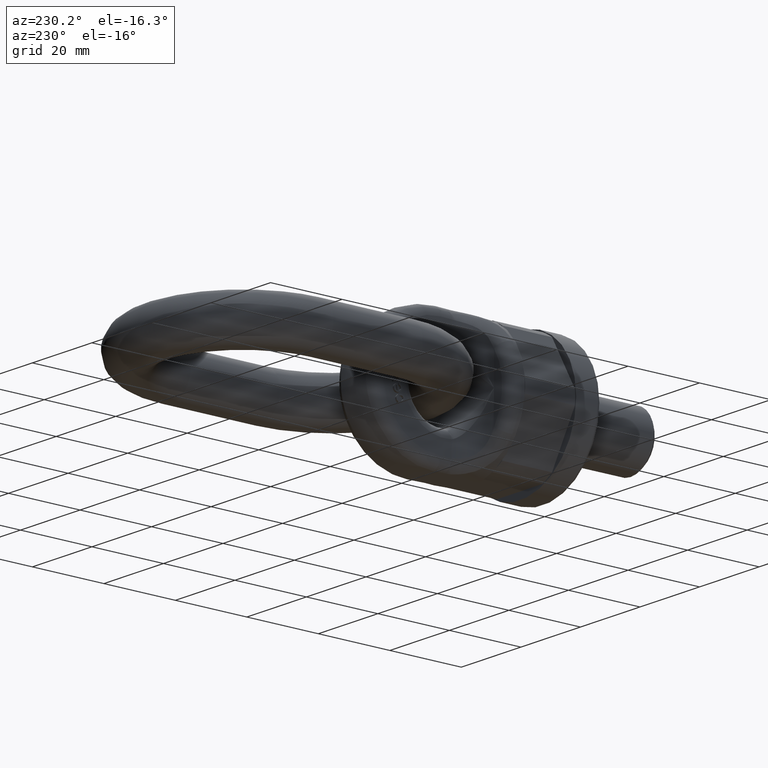
[diagram: clean part render]
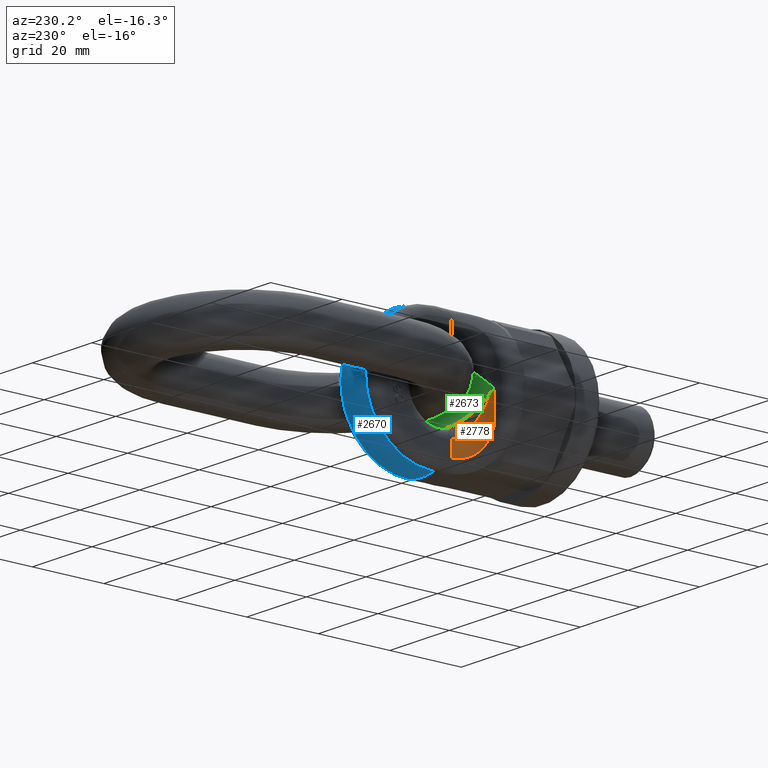
[diagram: same view with three faces highlighted in distinct colors, each labeled with its STEP entity id]
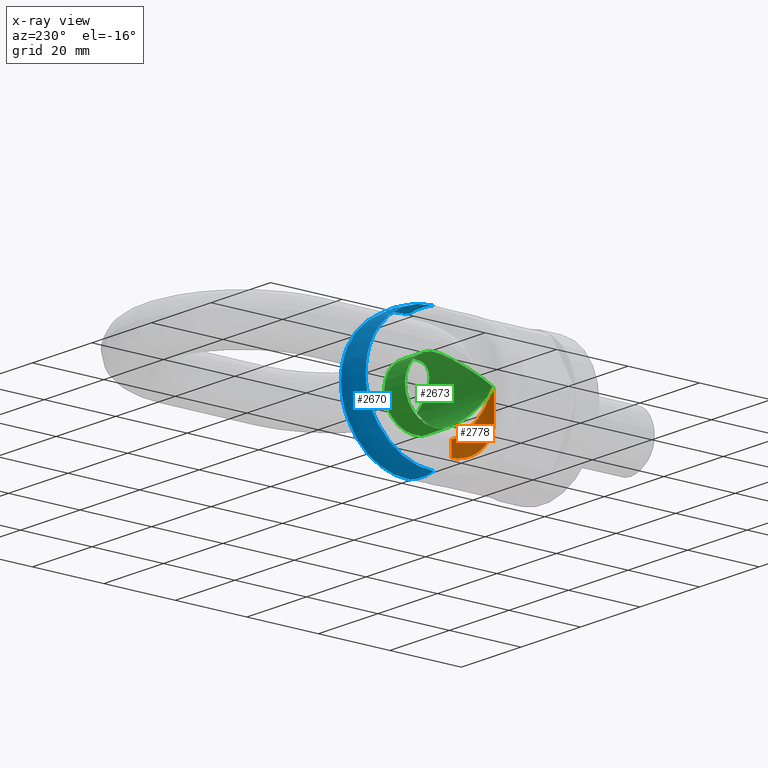
[diagram: x-ray of the same camera — body ghosted, the three highlighted faces saturated]
A machine part, auxiliary view with three faces highlighted in distinct colors.
The next image is the same camera in x-ray (body ghosted, the three faces saturated) — at least one of them is partly hidden behind the body in this view.
Their STEP definitions:

[orange] entity #2778 — the highlighted cylindrical surface (edge-blend (fillet) strip) has radius 6.5 mm, axis along (-0, 0, 1).
#542=B_SPLINE_CURVE_WITH_KNOTS('',3,(#8571,#8572,#8573,#8574,#8575,#8576,
#8577,#8578),.UNSPECIFIED.,.F.,.F.,(4,2,2,4),(0.,0.5,0.75,1.),
 .UNSPECIFIED.);
#543=B_SPLINE_CURVE_WITH_KNOTS('',3,(#8579,#8580,#8581,#8582,#8583,#8584,
#8585,#8586),.UNSPECIFIED.,.F.,.F.,(4,2,2,4),(0.,0.25,0.5,1.),
 .UNSPECIFIED.);
#1921=FACE_OUTER_BOUND('',#3230,.T.);
#2034=CYLINDRICAL_SURFACE('',#5735,6.5);
#2187=LINE('',#8378,#2489);
#2215=LINE('',#8569,#2517);
#2489=VECTOR('',#6259,1.);
#2517=VECTOR('',#6293,1.);
#2778=ADVANCED_FACE('',(#1921),#2034,.F.);
#3230=EDGE_LOOP('',(#4074,#4075,#4076,#4077));
#4074=ORIENTED_EDGE('',*,*,#5345,.F.);
#4075=ORIENTED_EDGE('',*,*,#5346,.T.);
#4076=ORIENTED_EDGE('',*,*,#5293,.F.);
#4077=ORIENTED_EDGE('',*,*,#5347,.T.);
#4670=VERTEX_POINT('',#7131);
#4789=VERTEX_POINT('',#8379);
#4790=VERTEX_POINT('',#8380);
#4841=VERTEX_POINT('',#8570);
#5293=EDGE_CURVE('',#4789,#4790,#2187,.T.);
#5345=EDGE_CURVE('',#4670,#4841,#2215,.T.);
#5346=EDGE_CURVE('',#4670,#4790,#542,.T.);
#5347=EDGE_CURVE('',#4789,#4841,#543,.T.);
#5735=AXIS2_PLACEMENT_3D('',#8587,#6294,#6295);
#6259=DIRECTION('',(-2.34291072916505E-15,0.,1.));
#6293=DIRECTION('',(2.34291072916505E-15,0.,-1.));
#6294=DIRECTION('',(-2.34291072916505E-15,0.,1.));
#6295=DIRECTION('',(1.,0.,2.1350442781253E-15));
#7131=CARTESIAN_POINT('',(-13.,25.,-3.04578394791456E-14));
#8378=CARTESIAN_POINT('',(-6.50000000000004,31.5,17.5879640283967));
#8379=CARTESIAN_POINT('',(-6.49999999999996,31.5,-15.5261697642409));
#8380=CARTESIAN_POINT('',(-6.49999999999997,31.5,-11.3247516529061));
#8569=CARTESIAN_POINT('',(-13.,25.,-17.5879640283967));
#8570=CARTESIAN_POINT('',(-13.,25.,-8.75457788886277));
#8571=CARTESIAN_POINT('',(-13.,25.,-2.89971151940498E-14));
#8572=CARTESIAN_POINT('',(-11.6363297239822,25.,-2.19283911534953));
#8573=CARTESIAN_POINT('',(-10.2574544218147,25.3999302230208,-4.40371109912028));
#8574=CARTESIAN_POINT('',(-8.39089552933354,26.849542187957,-7.51255852914363));
#8575=CARTESIAN_POINT('',(-7.80904231767955,27.4707738126975,-8.50219585972229));
#8576=CARTESIAN_POINT('',(-6.86255400838725,29.1521367100866,-10.2479499623017));
#8577=CARTESIAN_POINT('',(-6.49999999999997,30.225828042753,-10.995870035153));
#8578=CARTESIAN_POINT('',(-6.49999999999997,31.5,-11.3247516529061));
#8579=CARTESIAN_POINT('',(-6.49999999999996,31.5,-15.5261697642409));
#8580=CARTESIAN_POINT('',(-6.49999999999996,30.4023984418045,-15.484143703934));
#8581=CARTESIAN_POINT('',(-6.78545360090911,29.3252350292592,-15.3619240039014));
#8582=CARTESIAN_POINT('',(-7.7849597312283,27.4808527497112,-14.8402538309279));
#8583=CARTESIAN_POINT('',(-8.49812095313619,26.7237377680075,-14.4221665651141));
#8584=CARTESIAN_POINT('',(-10.7273783797691,25.1436193933453,-12.5839638700305));
#8585=CARTESIAN_POINT('',(-12.0856010531234,25.,-10.7390916154192));
#8586=CARTESIAN_POINT('',(-13.,25.,-8.75457788886277));
#8587=CARTESIAN_POINT('',(-12.9999999999999,31.5,-20.9));

[blue] entity #2670 — the highlighted spherical surface has radius 19 mm.
#315=SPHERICAL_SURFACE('',#5660,19.);
#1822=FACE_OUTER_BOUND('',#3106,.T.);
#2670=ADVANCED_FACE('',(#1822),#315,.T.);
#3106=EDGE_LOOP('',(#3534,#3535,#3536,#3537));
#3534=ORIENTED_EDGE('',*,*,#5068,.F.);
#3535=ORIENTED_EDGE('',*,*,#5079,.T.);
#3536=ORIENTED_EDGE('',*,*,#5074,.F.);
#3537=ORIENTED_EDGE('',*,*,#5080,.T.);
#4655=VERTEX_POINT('',#7027);
#4656=VERTEX_POINT('',#7029);
#4661=VERTEX_POINT('',#7063);
#4662=VERTEX_POINT('',#7065);
#5068=EDGE_CURVE('',#4655,#4656,#5562,.T.);
#5074=EDGE_CURVE('',#4661,#4662,#5564,.T.);
#5079=EDGE_CURVE('',#4655,#4662,#5566,.T.);
#5080=EDGE_CURVE('',#4661,#4656,#5567,.T.);
#5562=CIRCLE('',#5653,18.9937982914999);
#5564=CIRCLE('',#5655,18.9937982914999);
#5566=CIRCLE('',#5658,18.5398378077452);
#5567=CIRCLE('',#5659,18.5398378077452);
#5653=AXIS2_PLACEMENT_3D('',#7028,#5969,#5970);
#5655=AXIS2_PLACEMENT_3D('',#7064,#5973,#5974);
#5658=AXIS2_PLACEMENT_3D('',#7095,#5979,#5980);
#5659=AXIS2_PLACEMENT_3D('',#7096,#5981,#5982);
#5660=AXIS2_PLACEMENT_3D('',#7097,#5983,#5984);
#5969=DIRECTION('',(0.,-1.,0.));
#5970=DIRECTION('',(0.,0.,-1.));
#5973=DIRECTION('',(0.,-1.,0.));
#5974=DIRECTION('',(0.,0.,-1.));
#5979=DIRECTION('',(1.,3.58908305374512E-16,2.34291072916505E-15));
#5980=DIRECTION('',(3.74269396305529E-16,-1.,8.31045002381911E-31));
#5981=DIRECTION('',(-1.,3.58908305374512E-16,0.));
#5982=DIRECTION('',(-3.74269396305529E-16,-1.,0.));
#5983=DIRECTION('',(6.12323399573677E-17,-1.,0.));
#5984=DIRECTION('',(1.,0.,0.));
#7027=CARTESIAN_POINT('',(-4.15624999999995,34.514586298282,-18.5334821195501));
#7028=CARTESIAN_POINT('',(0.,34.514586298282,0.));
#7029=CARTESIAN_POINT('',(4.15625,34.514586298282,-18.5334821195501));
#7063=CARTESIAN_POINT('',(4.15625,34.514586298282,18.5334821195501));
#7064=CARTESIAN_POINT('',(0.,34.514586298282,0.));
#7065=CARTESIAN_POINT('',(-4.15625000000004,34.514586298282,18.5334821195501));
#7095=CARTESIAN_POINT('',(-4.15625,35.,-9.73772271809223E-15));
#7096=CARTESIAN_POINT('',(4.15625,35.,0.));
#7097=CARTESIAN_POINT('',(0.,35.,0.));

[green] entity #2673 — the highlighted cylindrical surface (bore or boss wall) has radius 8.5 mm, axis along (-1, 0, 0).
#365=B_SPLINE_CURVE_WITH_KNOTS('',3,(#7104,#7105,#7106,#7107,#7108,#7109,
#7110,#7111),.UNSPECIFIED.,.F.,.F.,(4,2,2,4),(0.,0.25,0.5,1.),
 .UNSPECIFIED.);
#366=B_SPLINE_CURVE_WITH_KNOTS('',3,(#7112,#7113,#7114,#7115,#7116,#7117,
#7118,#7119),.UNSPECIFIED.,.F.,.F.,(4,2,2,4),(0.,0.5,0.75,1.),
 .UNSPECIFIED.);
#367=B_SPLINE_CURVE_WITH_KNOTS('',3,(#7123,#7124,#7125,#7126,#7127,#7128,
#7129,#7130),.UNSPECIFIED.,.F.,.F.,(4,2,2,4),(0.,0.25,0.5,1.),
 .UNSPECIFIED.);
#368=B_SPLINE_CURVE_WITH_KNOTS('',3,(#7132,#7133,#7134,#7135,#7136,#7137,
#7138,#7139),.UNSPECIFIED.,.F.,.F.,(4,2,2,4),(0.,0.5,0.75,1.),
 .UNSPECIFIED.);
#2030=CYLINDRICAL_SURFACE('',#5666,8.5);
#2673=ADVANCED_FACE('',(#3018,#3019),#2030,.F.);
#3018=FACE_BOUND('',#3109,.T.);
#3019=FACE_BOUND('',#3110,.T.);
#3109=EDGE_LOOP('',(#3542,#3543,#3544));
#3110=EDGE_LOOP('',(#3545,#3546,#3547));
#3542=ORIENTED_EDGE('',*,*,#5082,.T.);
#3543=ORIENTED_EDGE('',*,*,#5083,.T.);
#3544=ORIENTED_EDGE('',*,*,#5084,.T.);
#3545=ORIENTED_EDGE('',*,*,#5085,.T.);
#3546=ORIENTED_EDGE('',*,*,#5086,.T.);
#3547=ORIENTED_EDGE('',*,*,#5087,.T.);
#4650=VERTEX_POINT('',#6980);
#4666=VERTEX_POINT('',#7102);
#4667=VERTEX_POINT('',#7103);
#4668=VERTEX_POINT('',#7121);
#4669=VERTEX_POINT('',#7122);
#4670=VERTEX_POINT('',#7131);
#5082=EDGE_CURVE('',#4666,#4667,#5569,.T.);
#5083=EDGE_CURVE('',#4667,#4650,#365,.T.);
#5084=EDGE_CURVE('',#4650,#4666,#366,.T.);
#5085=EDGE_CURVE('',#4668,#4669,#5570,.T.);
#5086=EDGE_CURVE('',#4669,#4670,#367,.T.);
#5087=EDGE_CURVE('',#4670,#4668,#368,.T.);
#5569=CIRCLE('',#5664,8.5);
#5570=CIRCLE('',#5665,8.5);
#5664=AXIS2_PLACEMENT_3D('',#7101,#5991,#5992);
#5665=AXIS2_PLACEMENT_3D('',#7120,#5993,#5994);
#5666=AXIS2_PLACEMENT_3D('',#7140,#5995,#5996);
#5991=DIRECTION('',(1.,-3.58908305374512E-16,0.));
#5992=DIRECTION('',(3.57148950936401E-16,1.,0.));
#5993=DIRECTION('',(-1.,-3.58908305374512E-16,-2.34291072916505E-15));
#5994=DIRECTION('',(-3.57148950936401E-16,1.,-9.06319973829287E-31));
#5995=DIRECTION('',(-1.,0.,0.));
#5996=DIRECTION('',(0.,0.,1.));
#6980=CARTESIAN_POINT('',(13.,25.,0.));
#7101=CARTESIAN_POINT('',(3.5,33.5,0.));
#7102=CARTESIAN_POINT('',(3.5,32.0217391304348,-8.37046861301757));
#7103=CARTESIAN_POINT('',(3.5,32.0217391304348,8.37046861301757));
#7104=CARTESIAN_POINT('',(3.5,32.0217391304348,8.37046861301757));
#7105=CARTESIAN_POINT('',(3.5,30.718801039141,8.14036412486142));
#7106=CARTESIAN_POINT('',(3.99554953904714,29.5519251802337,7.60966337603335));
#7107=CARTESIAN_POINT('',(5.35751875583322,27.7221647485428,6.33331597869827));
#7108=CARTESIAN_POINT('',(6.20872425476971,27.0370475415328,5.59970090486852));
#7109=CARTESIAN_POINT('',(8.95015468242651,25.4413897059657,3.28852838614067));
#7110=CARTESIAN_POINT('',(10.9825838840881,25.,1.640603798999));
#7111=CARTESIAN_POINT('',(13.,25.,0.));
#7112=CARTESIAN_POINT('',(13.,25.,0.));
#7113=CARTESIAN_POINT('',(10.9825838840881,25.,-1.640603798999));
#7114=CARTESIAN_POINT('',(8.95015468242651,25.4413897059657,-3.28852838614067));
#7115=CARTESIAN_POINT('',(6.20872425476971,27.0370475415328,-5.59970090486852));
#7116=CARTESIAN_POINT('',(5.35751875583322,27.7221647485428,-6.33331597869827));
#7117=CARTESIAN_POINT('',(3.99554953904714,29.5519251802337,-7.60966337603335));
#7118=CARTESIAN_POINT('',(3.5,30.718801039141,-8.14036412486142));
#7119=CARTESIAN_POINT('',(3.5,32.0217391304348,-8.37046861301757));
#7120=CARTESIAN_POINT('',(-3.5,33.5,-8.20018755207767E-15));
#7121=CARTESIAN_POINT('',(-3.50000000000002,32.0217391304348,8.37046861301756));
#7122=CARTESIAN_POINT('',(-3.49999999999998,32.0217391304348,-8.37046861301758));
#7123=CARTESIAN_POINT('',(-3.49999999999998,32.0217391304348,-8.37046861301758));
#7124=CARTESIAN_POINT('',(-3.49999999999998,30.718801039141,-8.14036412486142));
#7125=CARTESIAN_POINT('',(-3.99554953904713,29.5519251802337,-7.60966337603336));
#7126=CARTESIAN_POINT('',(-5.3575187558332,27.7221647485428,-6.33331597869828));
#7127=CARTESIAN_POINT('',(-6.20872425476969,27.0370475415328,-5.59970090486853));
#7128=CARTESIAN_POINT('',(-8.9501546824265,25.4413897059657,-3.28852838614069));
#7129=CARTESIAN_POINT('',(-10.9825838840881,25.,-1.64060379899902));
#7130=CARTESIAN_POINT('',(-13.,25.,-3.04578394791456E-14));
#7131=CARTESIAN_POINT('',(-13.,25.,-3.04578394791456E-14));
#7132=CARTESIAN_POINT('',(-13.,25.,-3.04578394791456E-14));
#7133=CARTESIAN_POINT('',(-10.9825838840881,25.,1.64060379899897));
#7134=CARTESIAN_POINT('',(-8.95015468242652,25.4413897059657,3.28852838614065));
#7135=CARTESIAN_POINT('',(-6.20872425476972,27.0370475415328,5.5997009048685));
#7136=CARTESIAN_POINT('',(-5.35751875583323,27.7221647485428,6.33331597869826));
#7137=CARTESIAN_POINT('',(-3.99554953904716,29.5519251802337,7.60966337603334));
#7138=CARTESIAN_POINT('',(-3.50000000000002,30.718801039141,8.14036412486141));
#7139=CARTESIAN_POINT('',(-3.50000000000002,32.0217391304348,8.37046861301756));
#7140=CARTESIAN_POINT('',(20.625703362156,33.5,0.));